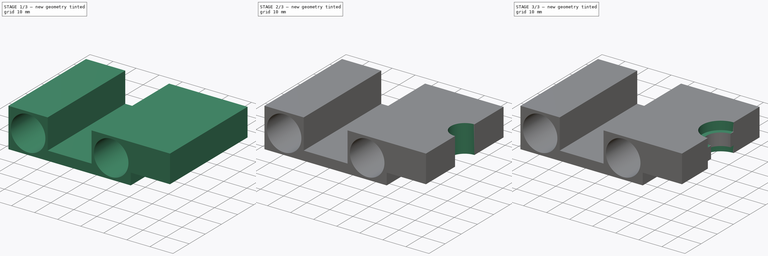
[diagram: build sequence overview — one tinted view per stage of 3, left to right]
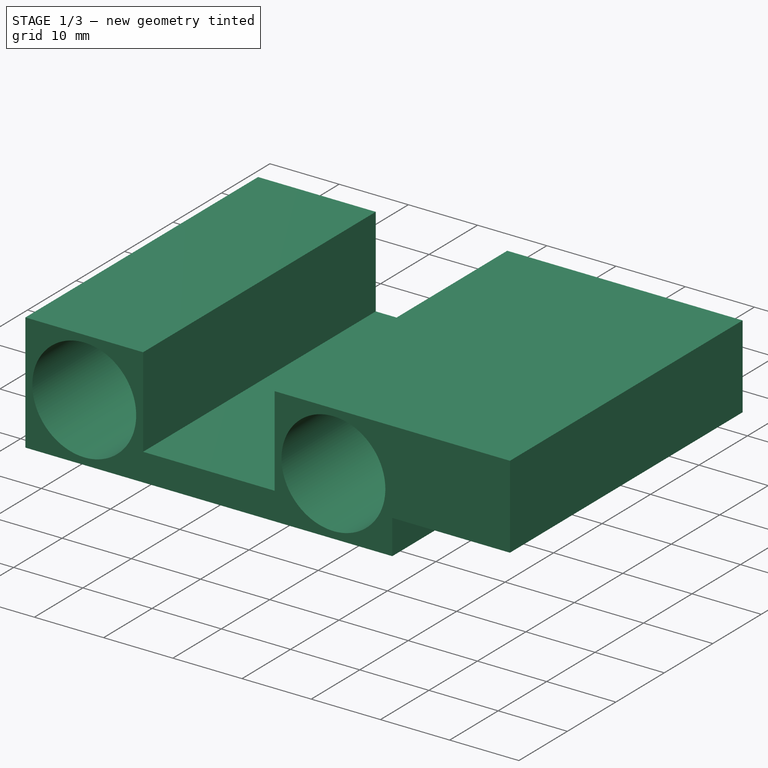
[diagram: stage 1 of 3 — iso view after this stage's code; geometry added in this stage tinted green]
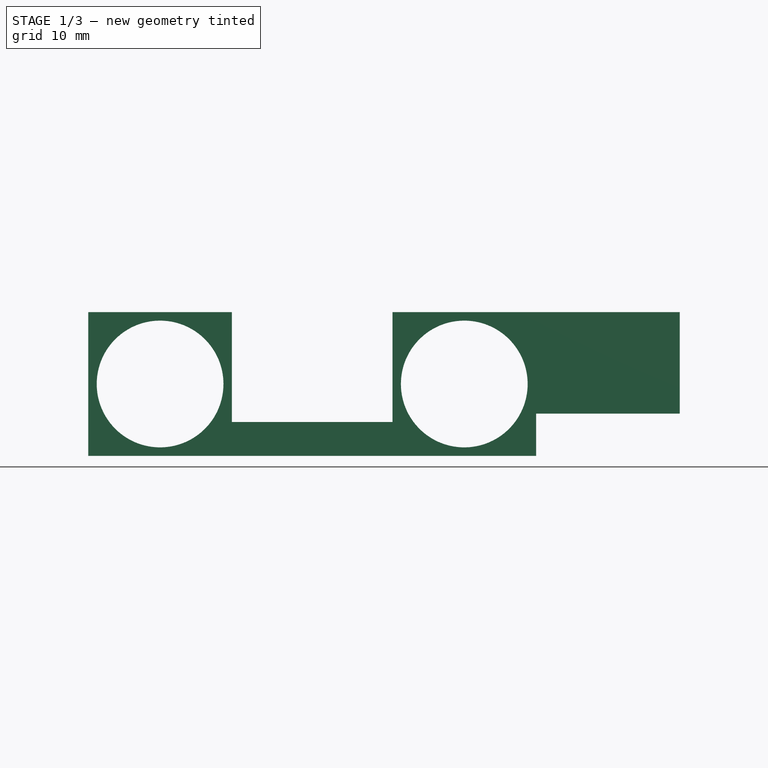
[diagram: stage 1 of 3 — front view after this stage's code; geometry added in this stage tinted green]
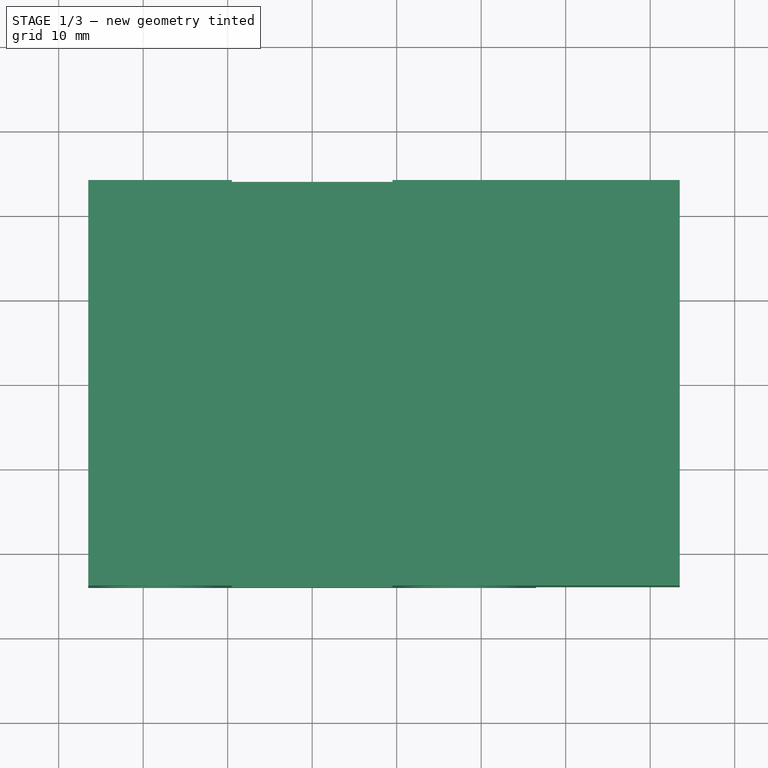
[diagram: stage 1 of 3 — top view after this stage's code; geometry added in this stage tinted green]
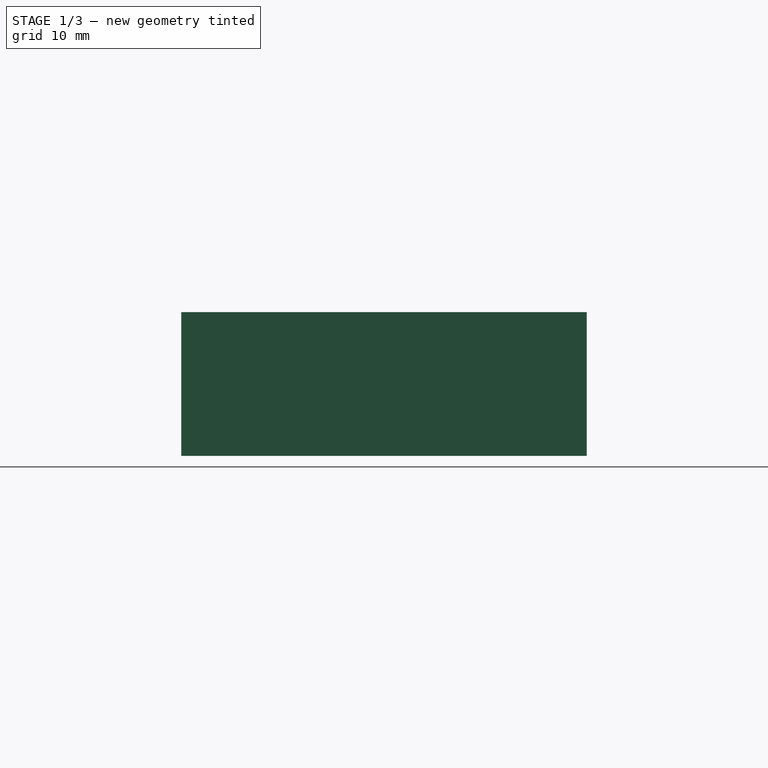
[diagram: stage 1 of 3 — right view after this stage's code; geometry added in this stage tinted green]
FCSTD DOCUMENT  (FreeCAD 0.16RUnknown)
Label: xCarriage-Single-Hotend
License: All rights reserved
LicenseURL: http://en.wikipedia.org/wiki/All_rights_reserved
objects: Sketcher::SketchObject×5, PartDesign::Pocket×3, PartDesign::Pad×2
note: 15 computed .brp shape members not serialized (recipe doc carries the construction recipe); baked Part::Feature solids carry a one-line shape summary decoded from their .brp

FEATURE [Sketcher::SketchObject] Sketch
  Placement = pos=(0,0,0) rot=(-1,0,0;4.71239rad)
  sketch-geometry (10):
    g0: LineSegment StartX=-26.5 StartY=8.5 StartZ=0 EndX=-26.5 EndY=-8.5 EndZ=0
    g1: LineSegment StartX=-26.5 StartY=-8.5 StartZ=0 EndX=26.5 EndY=-8.5 EndZ=0
    g2: LineSegment StartX=26.5 StartY=-8.5 StartZ=0 EndX=26.5 EndY=8.5 EndZ=0
    g3: LineSegment StartX=26.5 StartY=8.5 StartZ=0 EndX=9.5 EndY=8.5 EndZ=0
    g4: LineSegment StartX=9.5 StartY=8.5 StartZ=0 EndX=9.5 EndY=-4.5 EndZ=0
    g5: LineSegment StartX=9.5 StartY=-4.5 StartZ=0 EndX=-9.5 EndY=-4.5 EndZ=0
    g6: LineSegment StartX=-9.5 StartY=-4.5 StartZ=0 EndX=-9.5 EndY=8.5 EndZ=0
    g7: LineSegment StartX=-9.5 StartY=8.5 StartZ=0 EndX=-26.5 EndY=8.5 EndZ=0
    g8: Circle CenterX=-18 CenterY=0 CenterZ=0 NormalX=0 NormalY=0 NormalZ=1 Radius=7.5
    g9: Circle CenterX=18 CenterY=0 CenterZ=0 NormalX=0 NormalY=0 NormalZ=1 Radius=7.5
  constraints (30):
    c: Vertical(g0)
    c: Coincident(g0,g1)
    c: Horizontal(g1)
    c: Coincident(g1,g2)
    c: Vertical(g2)
    c: Coincident(g2,g3)
    c: Horizontal(g3)
    c: Coincident(g3,g4)
    c: Vertical(g4)
    c: Coincident(g4,g5)
    c: Coincident(g5,g6)
    c: Vertical(g6)
    c: Coincident(g6,g7)
    c: Coincident(g7,g0)
    c: Horizontal(g7)
    c: Horizontal(g5)
    c: Equal(g7,g3)
    c: Equal(g0,g2)
    c: Equal(g4,g6)
    c: DistanceX(g7,g7) = 17
    c: DistanceY(g0,g0) = 17
    c: DistanceY(g0,g5) = 4
    c: DistanceX(g5,g5) = 19
    c: DistanceX(g0,g-1) = 26.5
    c: DistanceY(g-1,g2) = 8.5
    c: Equal(g8,g9)
    c: Radius(g8) = 7.5
    c: DistanceY(g-1,g8) = 0
    c: Symmetric(g9,g8,g-2)
    c: DistanceX(g8,g9) = 36
FEATURE [PartDesign::Pad] Pad
  Length = 48
  Length2 = 100
  Midplane = true
  Placement = pos=(0,0,0) rot=(-1,0,0;4.71239rad)
  Sketch = -> Sketch
  Type = 0
FEATURE [Sketcher::SketchObject] Sketch001
  Placement = pos=(26.5,0,0) rot=(0.707107,0,0.707107;3.14159rad)
  Support = -> Pad [Face3]
  sketch-geometry (4):
    g0: LineSegment StartX=8.5 StartY=24 StartZ=0 EndX=-3.5 EndY=24 EndZ=0
    g1: LineSegment StartX=-3.5 StartY=24 StartZ=0 EndX=-3.5 EndY=-24 EndZ=0
    g2: LineSegment StartX=-3.5 StartY=-24 StartZ=0 EndX=8.5 EndY=-24 EndZ=0
    g3: LineSegment StartX=8.5 StartY=-24 StartZ=0 EndX=8.5 EndY=24 EndZ=0
  constraints (12):
    c: Coincident(g0,g1)
    c: Coincident(g1,g2)
    c: Coincident(g2,g3)
    c: Coincident(g3,g0)
    c: Horizontal(g0)
    c: Horizontal(g2)
    c: Vertical(g1)
    c: Vertical(g3)
    c: DistanceY(g3,g3) = 48
    c: DistanceX(g0,g0) = 12
    c: DistanceX(g-1,g0) = 8.5
    c: DistanceY(g-1,g0) = 24
FEATURE [PartDesign::Pad] Pad001
  Length = 17
  Length2 = 100
  Placement = pos=(0,0,0) rot=(-1,0,0;4.71239rad)
  Sketch = -> Sketch001
  Type = 0
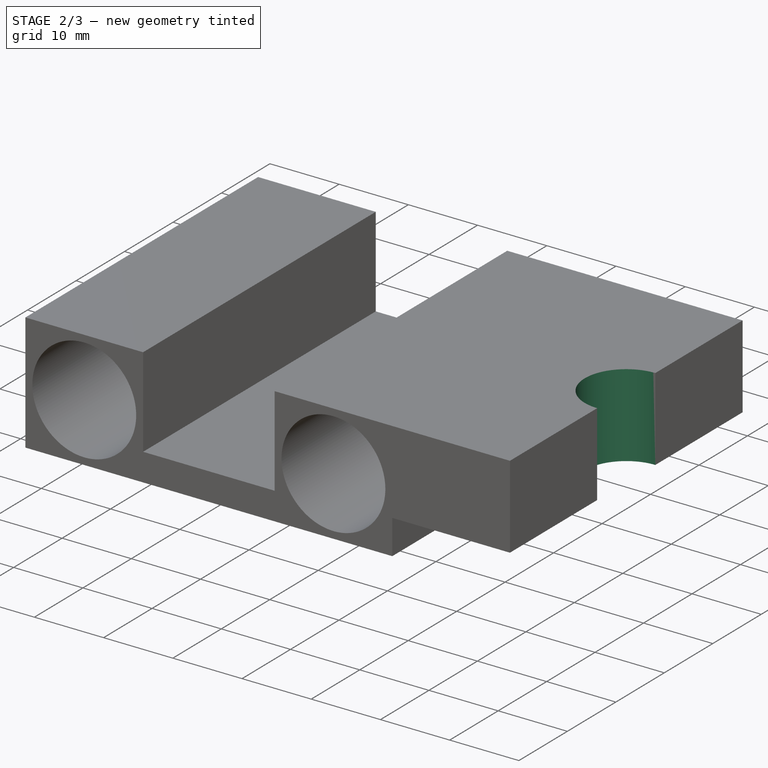
[diagram: stage 2 of 3 — iso view after this stage's code; geometry added in this stage tinted green]
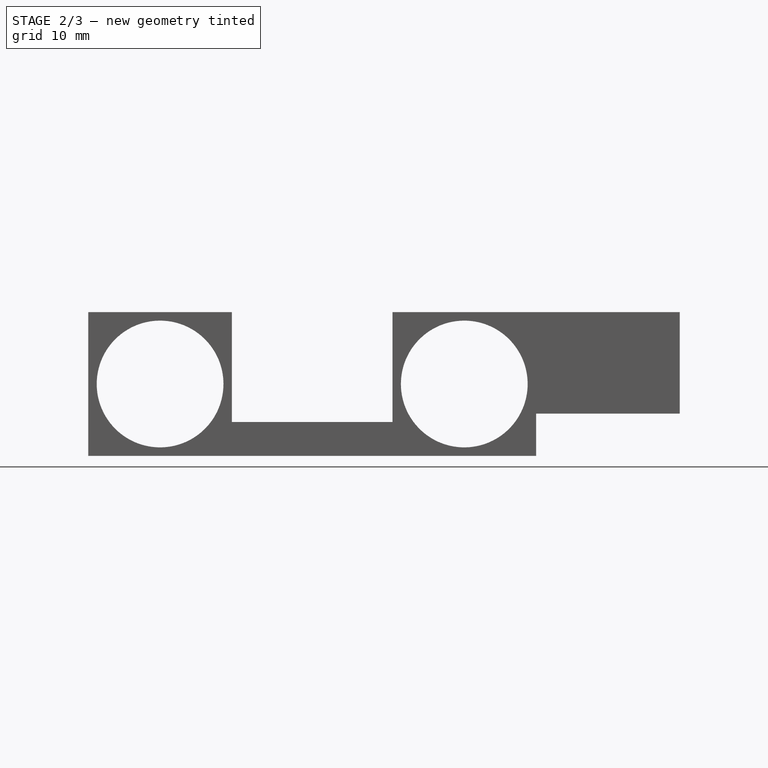
[diagram: stage 2 of 3 — front view after this stage's code; geometry added in this stage tinted green]
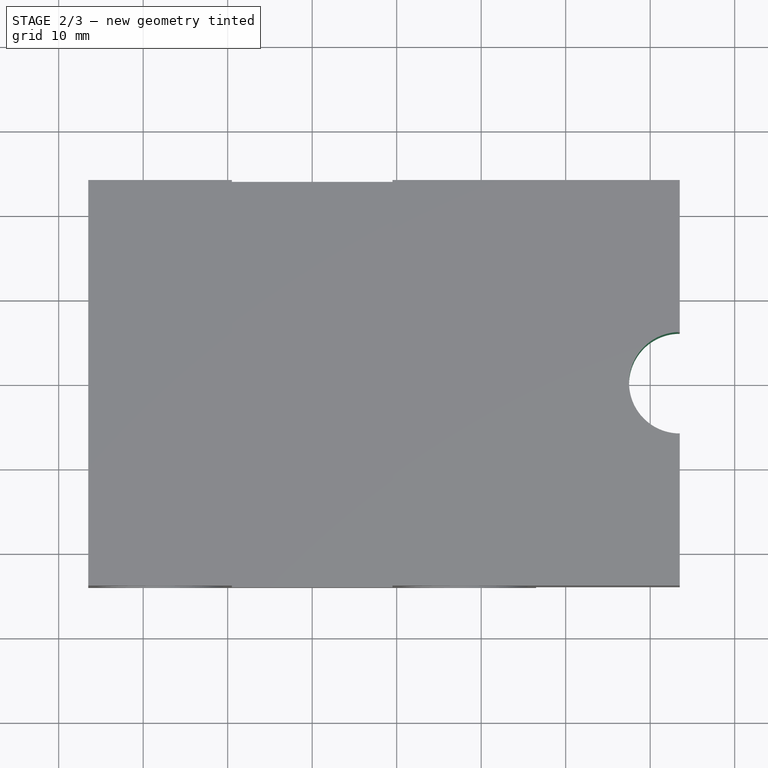
[diagram: stage 2 of 3 — top view after this stage's code; geometry added in this stage tinted green]
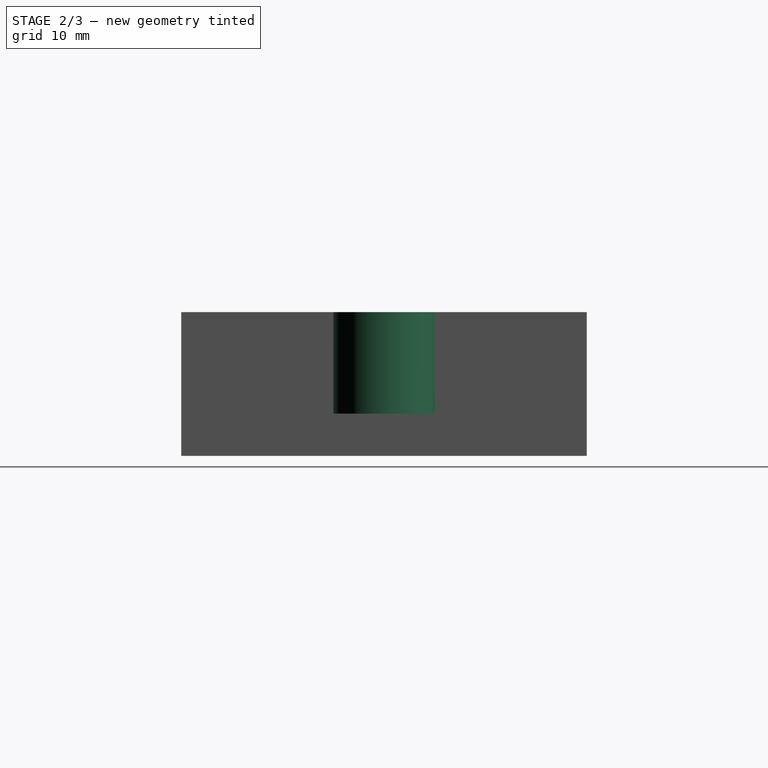
[diagram: stage 2 of 3 — right view after this stage's code; geometry added in this stage tinted green]
FEATURE [Sketcher::SketchObject] Sketch002
  Placement = pos=(0,0,8.5) rot=(0,0,1;3.14159rad)
  Support = -> Pad001 [Face17]
  sketch-geometry (4):
    g0: ArcOfCircle CenterX=-43.5 CenterY=0 CenterZ=0 NormalX=0 NormalY=0 NormalZ=1 Radius=6 StartAngle=4.71239 EndAngle=7.85398
    g1: LineSegment StartX=-43.5 StartY=6 StartZ=0 EndX=-55.5 EndY=6 EndZ=0
    g2: LineSegment StartX=-55.5 StartY=6 StartZ=0 EndX=-55.5 EndY=-6 EndZ=0
    g3: LineSegment StartX=-55.5 StartY=-6 StartZ=0 EndX=-43.5 EndY=-6 EndZ=0
  constraints (12):
    c: PointOnObject(g0,g-1)
    c: Radius(g0) = 6
    c: DistanceX(g0,g0) = 0
    c: DistanceX(g0,g0) = 0
    c: DistanceX(g0,g-1) = 43.5
    c: Tangent(g0,g1) = -1.5708
    c: Coincident(g1,g2)
    c: Vertical(g2)
    c: Coincident(g2,g3)
    c: Coincident(g3,g0)
    c: Horizontal(g3)
    c: Equal(g1,g2)
FEATURE [PartDesign::Pocket] Pocket
  Length = 5
  Placement = pos=(0,0,0) rot=(-1,0,0;4.71239rad)
  Sketch = -> Sketch002
  Type = 1
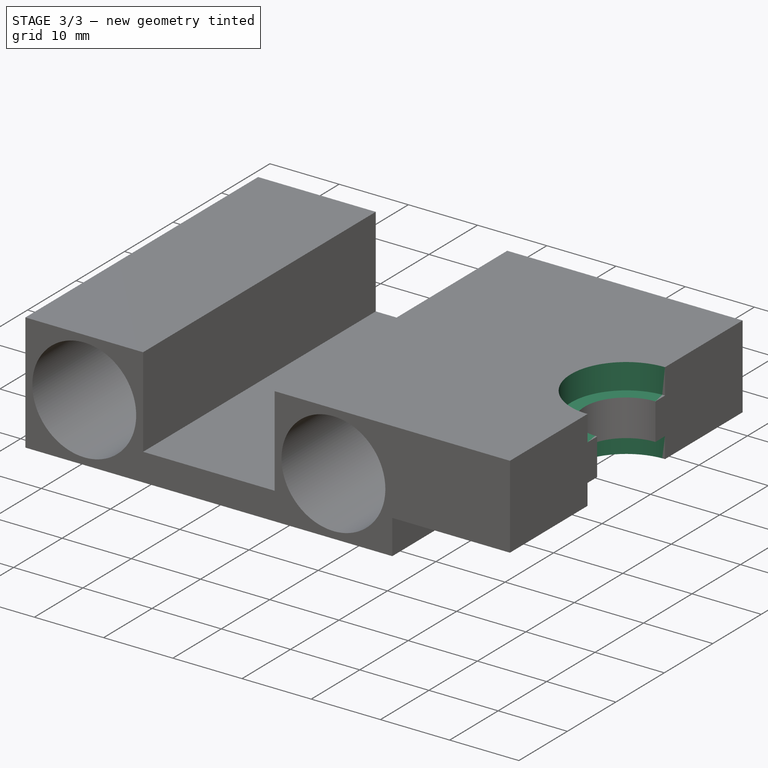
[diagram: stage 3 of 3 — iso view after this stage's code; geometry added in this stage tinted green]
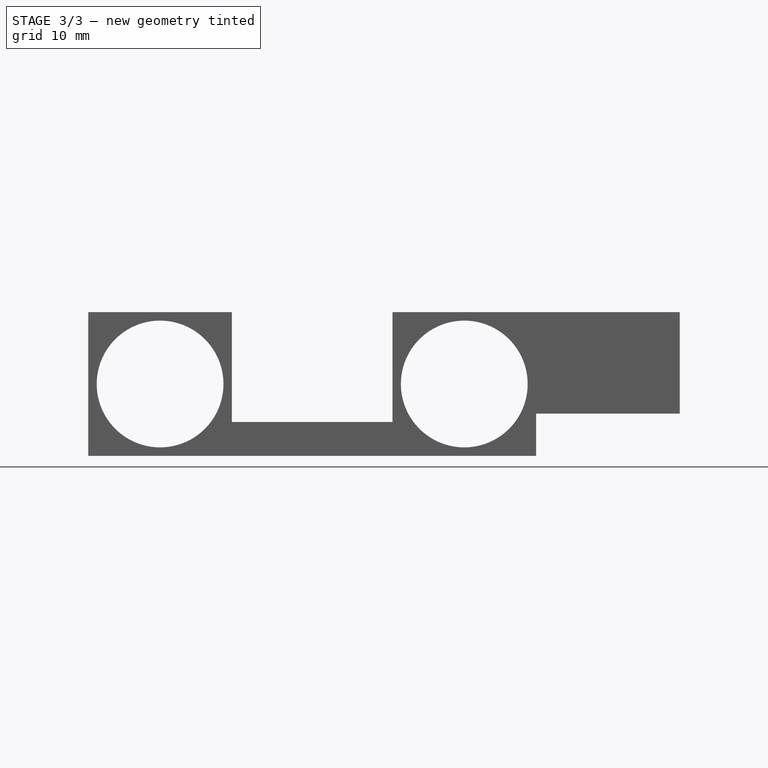
[diagram: stage 3 of 3 — front view after this stage's code; geometry added in this stage tinted green]
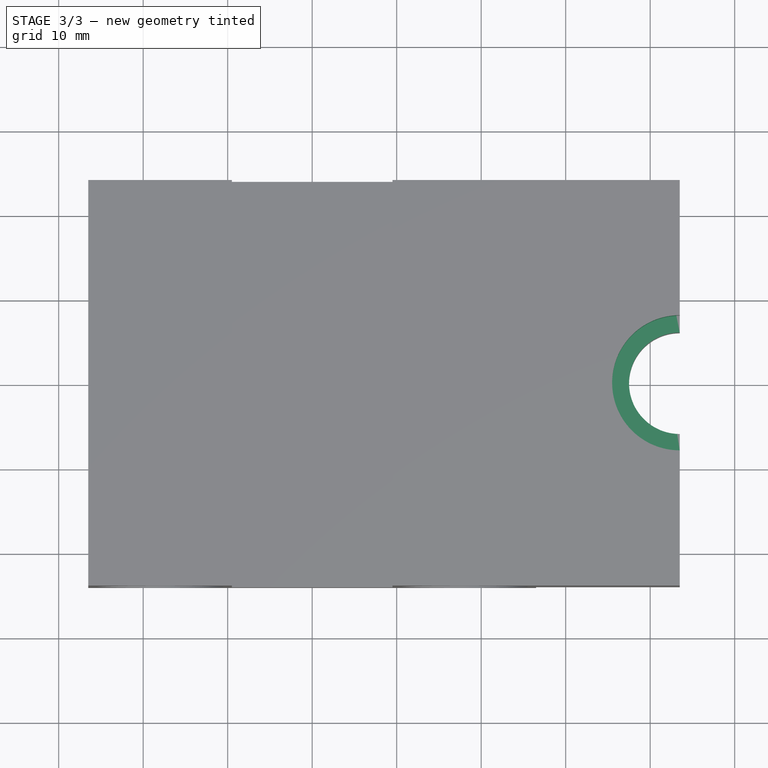
[diagram: stage 3 of 3 — top view after this stage's code; geometry added in this stage tinted green]
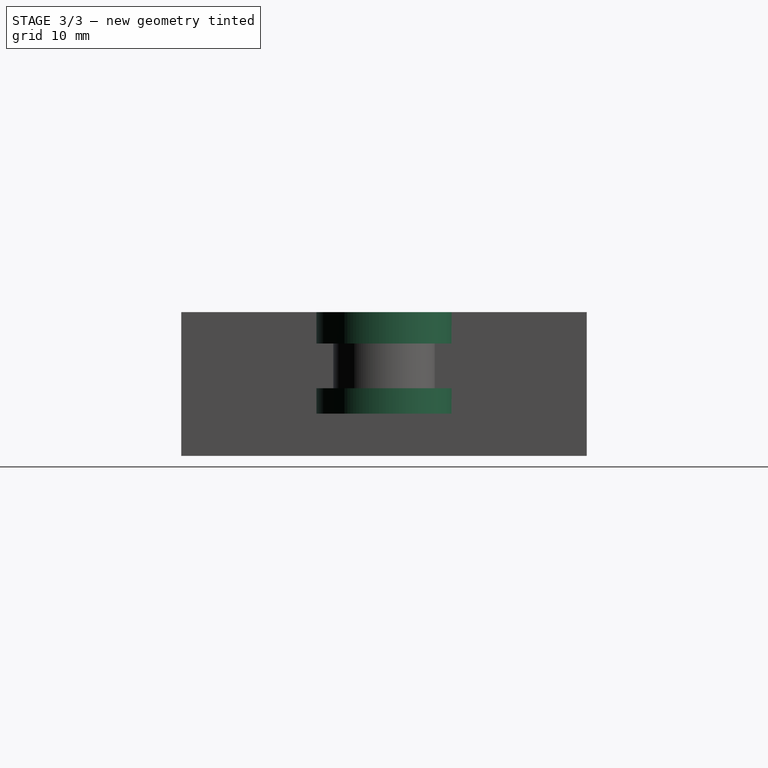
[diagram: stage 3 of 3 — right view after this stage's code; geometry added in this stage tinted green]
FEATURE [Sketcher::SketchObject] Sketch003
  Placement = pos=(0,0,8.5) rot=(0,0,1;3.14159rad)
  Support = -> Pocket [Face17]
  sketch-geometry (4):
    g0: ArcOfCircle CenterX=-43.5 CenterY=0 CenterZ=0 NormalX=0 NormalY=0 NormalZ=1 Radius=8 StartAngle=4.71239 EndAngle=7.85398
    g1: LineSegment StartX=-43.5 StartY=8 StartZ=0 EndX=-59.5 EndY=8 EndZ=0
    g2: LineSegment StartX=-59.5 StartY=8 StartZ=0 EndX=-59.5 EndY=-8 EndZ=0
    g3: LineSegment StartX=-59.5 StartY=-8 StartZ=0 EndX=-43.5 EndY=-8 EndZ=0
  constraints (12):
    c: PointOnObject(g0,g-1)
    c: Radius(g0) = 8
    c: DistanceY(g0,g0) = 8
    c: DistanceY(g0,g0) = 8
    c: DistanceX(g0,g-1) = 43.5
    c: Tangent(g0,g1) = -1.5708
    c: Coincident(g1,g2)
    c: Vertical(g2)
    c: Coincident(g2,g3)
    c: Coincident(g3,g0)
    c: Horizontal(g3)
    c: Equal(g2,g1)
FEATURE [PartDesign::Pocket] Pocket001
  Length = 3.7
  Placement = pos=(0,0,0) rot=(-1,0,0;4.71239rad)
  Sketch = -> Sketch003
  Type = 0
FEATURE [Sketcher::SketchObject] Sketch004
  Placement = pos=(0,0,-3.5) rot=(1,0,0;3.14159rad)
  Support = -> Pocket001 [Face15]
  sketch-geometry (4):
    g0: ArcOfCircle CenterX=43.5 CenterY=0 CenterZ=0 NormalX=0 NormalY=0 NormalZ=1 Radius=8 StartAngle=1.5708 EndAngle=4.71239
    g1: LineSegment StartX=43.5 StartY=8 StartZ=0 EndX=59.5001 EndY=8.00005 EndZ=0
    g2: LineSegment StartX=59.5001 StartY=8.00005 StartZ=0 EndX=59.5001 EndY=-8 EndZ=0
    g3: LineSegment StartX=59.5001 StartY=-8 StartZ=0 EndX=43.5 EndY=-8 EndZ=0
  constraints (12):
    c: PointOnObject(g0,g-1)
    c: Radius(g0) = 8
    c: DistanceY(g0,g0) = 8
    c: DistanceY(g0,g0) = 8
    c: DistanceX(g-1,g0) = 43.5
    c: Tangent(g0,g1) = 1.5708
    c: Coincident(g1,g2)
    c: Vertical(g2)
    c: Coincident(g2,g3)
    c: Coincident(g3,g0)
    c: Horizontal(g3)
    c: Equal(g2,g1)
FEATURE [PartDesign::Pocket] Pocket002
  Length = 3
  Placement = pos=(0,0,0) rot=(-1,0,0;4.71239rad)
  Sketch = -> Sketch004
  Type = 0
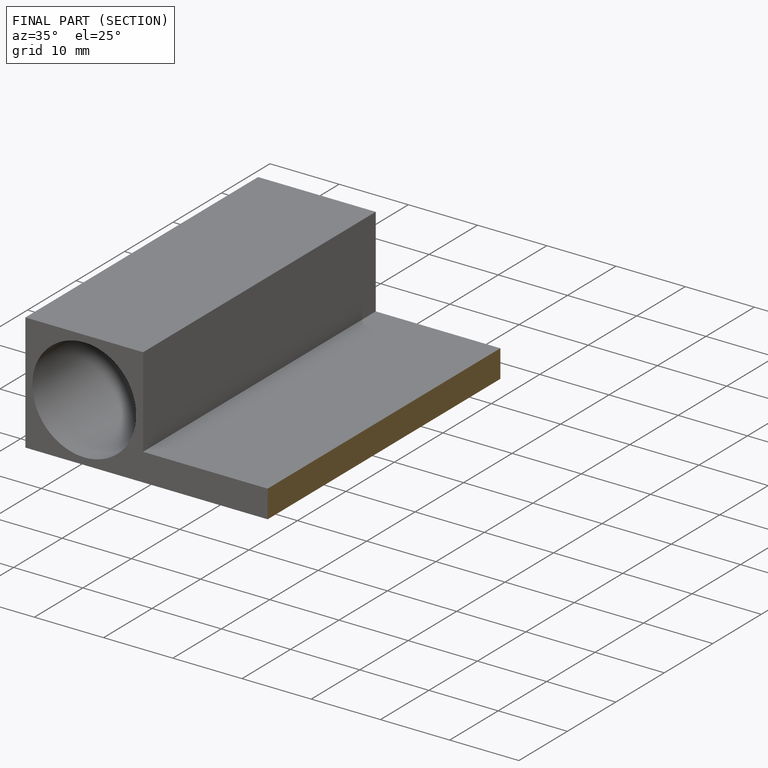
[diagram: finished part — half-section view (interior)]
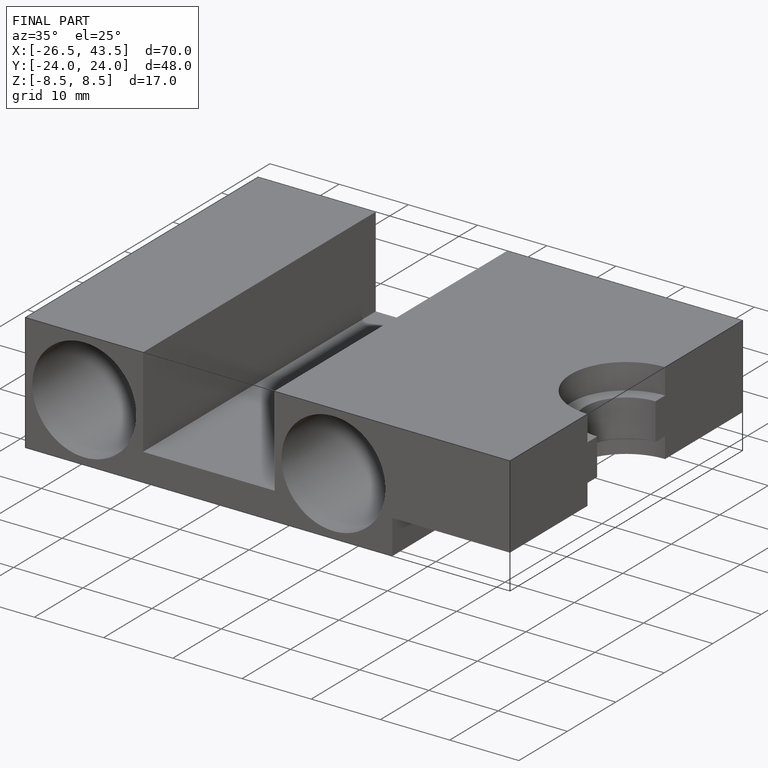
[diagram: finished part — iso view with bounding-box wireframe]
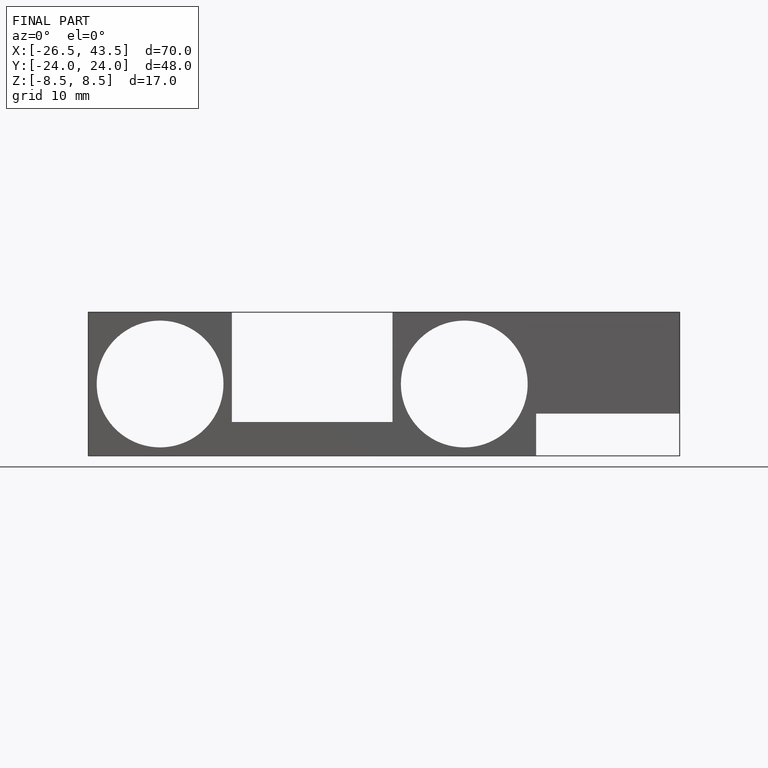
[diagram: finished part — front view with bounding-box wireframe]
